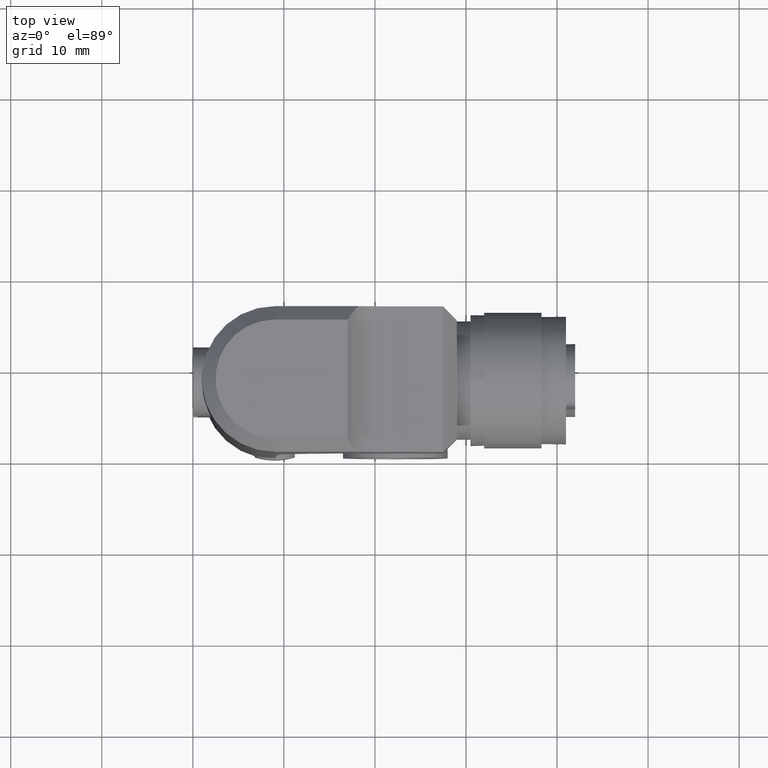
[diagram: clean part render]
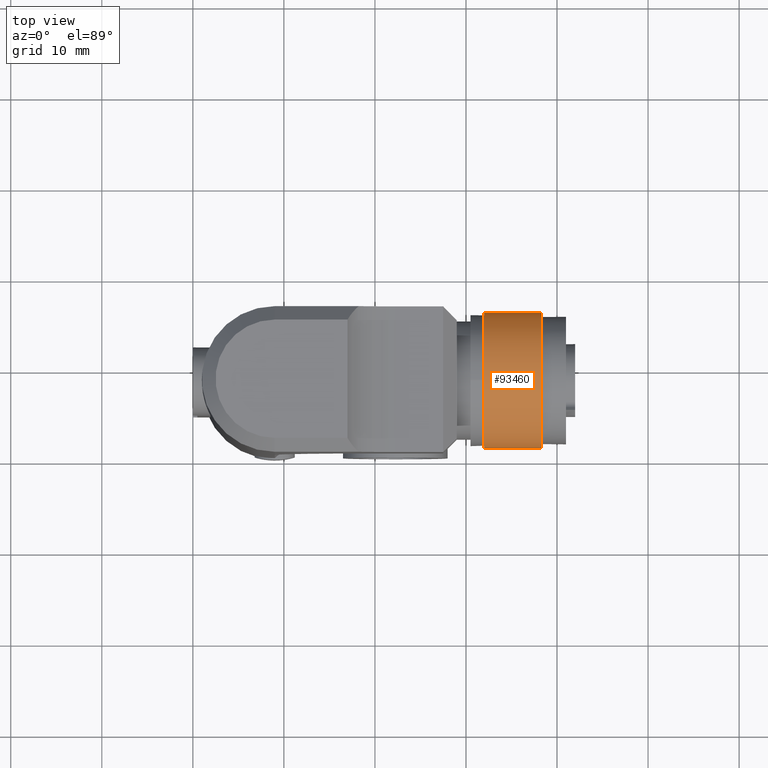
[diagram: same view with one face highlighted and labeled with its STEP entity id]
A machine part, top view. The second image highlights one B-rep face of the part: STEP entity #93460.
In plain terms, the highlighted cylindrical surface (partial cylindrical patch) has radius 7.45 mm, axis along (-1, 0, 0).
Its self-contained STEP definition (entity closure, byte-faithful):
#92180=CARTESIAN_POINT('',(3.78417479617013,29.2999999999937,
31.5826390850925));
#92190=VERTEX_POINT('',#92180);
#92290=CARTESIAN_POINT('',(3.78417479616079,22.9999999999937,
31.5826390850957));
#92300=VERTEX_POINT('',#92290);
#92330=CARTESIAN_POINT('',(3.78417479617008,29.2999999999937,
31.5826390850924));
#92340=DIRECTION('',(-1.47495681344279E-12,-1.,5.13230773890535E-13));
#92350=VECTOR('',#92340,1.);
#92360=LINE('',#92330,#92350);
#92370=EDGE_CURVE('',#92190,#92300,#92360,.T.);
#92530=CARTESIAN_POINT('',(-3.78417479602447,29.3000000000049,
31.582639085034));
#92540=VERTEX_POINT('',#92530);
#92590=CARTESIAN_POINT('',(2.32462937788114E-11,29.3000000000026,
38.0000000000019));
#92600=DIRECTION('',(-1.47495681344279E-12,-1.,5.13230773890535E-13));
#92610=DIRECTION('',(0.999982379698219,-1.47797754356864E-12,
-0.00593635351778232));
#92620=AXIS2_PLACEMENT_3D('',#92590,#92600,#92610);
#92630=CIRCLE('',#92620,7.45);
#92640=EDGE_CURVE('',#92190,#92540,#92630,.T.);
#92840=CARTESIAN_POINT('',(-3.78417479602448,29.3000000000049,
31.582639085034));
#92850=DIRECTION('',(-1.47495681344279E-12,-1.,5.13230773890535E-13));
#92860=VECTOR('',#92850,1.);
#92870=LINE('',#92840,#92860);
#92880=CARTESIAN_POINT('',(-3.78417479603377,23.0000000000049,
31.5826390850372));
#92890=VERTEX_POINT('',#92880);
#92900=EDGE_CURVE('',#92540,#92890,#92870,.T.);
#93140=CARTESIAN_POINT('',(1.39568356871678E-11,23.0000000000026,
38.0000000000051));
#93150=DIRECTION('',(-1.47495681344279E-12,-1.,5.13230773890535E-13));
#93160=DIRECTION('',(0.999982379698219,-1.47797754356864E-12,
-0.00593635351778232));
#93170=AXIS2_PLACEMENT_3D('',#93140,#93150,#93160);
#93180=CIRCLE('',#93170,7.45);
#93190=EDGE_CURVE('',#92300,#92890,#93180,.T.);
#93350=CARTESIAN_POINT('',(2.32462937788114E-11,29.3000000000026,
38.0000000000019));
#93360=DIRECTION('',(-1.47495681344279E-12,-1.,5.13230773890535E-13));
#93370=DIRECTION('',(0.999982379698219,-1.47797754356864E-12,
-0.00593635351778232));
#93380=AXIS2_PLACEMENT_3D('',#93350,#93360,#93370);
#93390=CYLINDRICAL_SURFACE('',#93380,7.45);
#93400=ORIENTED_EDGE('',*,*,#92640,.T.);
#93410=ORIENTED_EDGE('',*,*,#92370,.F.);
#93420=ORIENTED_EDGE('',*,*,#93190,.F.);
#93430=ORIENTED_EDGE('',*,*,#92900,.T.);
#93440=EDGE_LOOP('',(#93430,#93420,#93410,#93400));
#93450=FACE_OUTER_BOUND('',#93440,.T.);
#93460=ADVANCED_FACE('',(#93450),#93390,.T.);